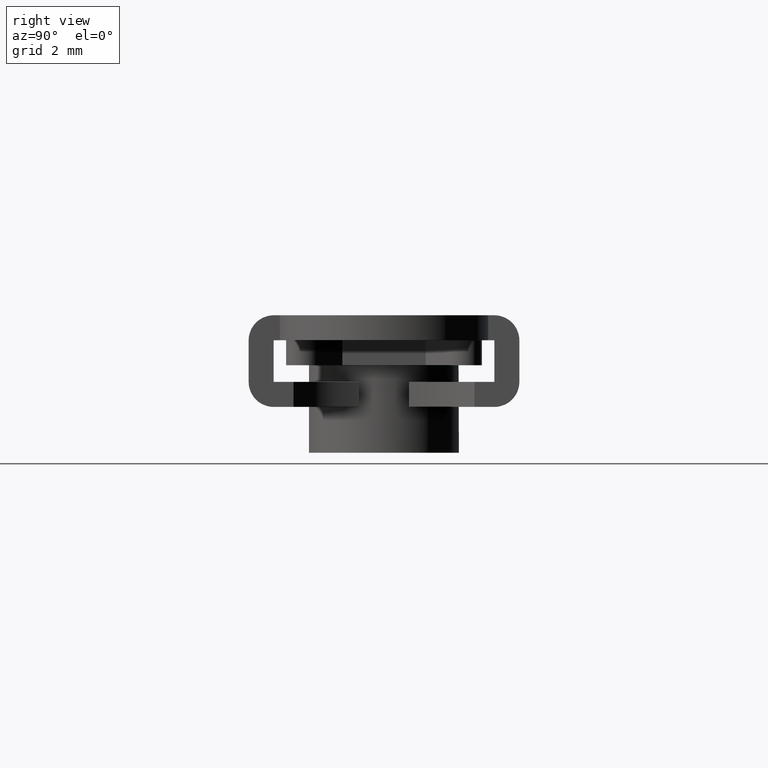
[diagram: clean part render]
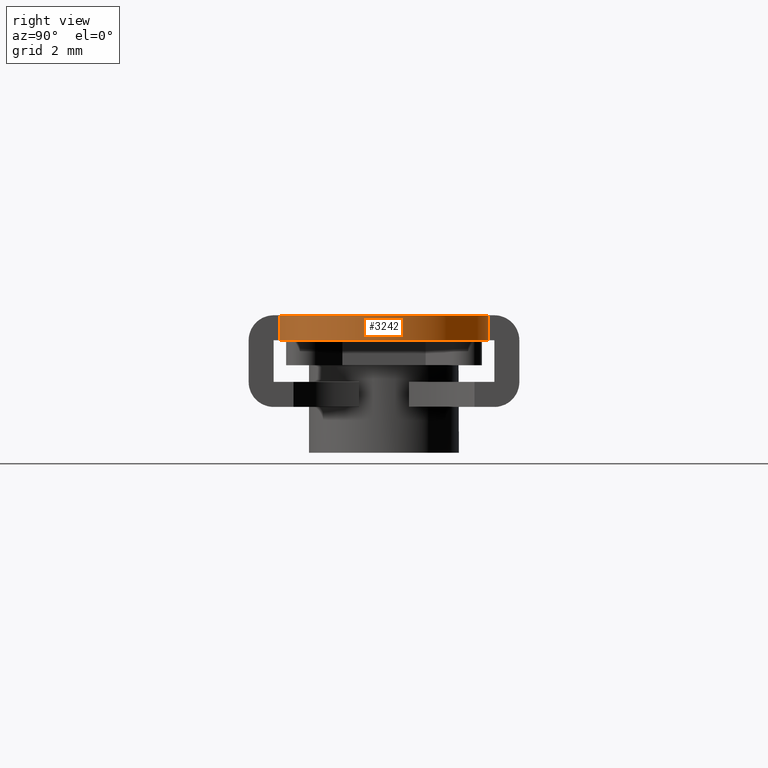
[diagram: same view with one face highlighted and labeled with its STEP entity id]
A machine part, right view. The second image highlights one B-rep face of the part: STEP entity #3242.
In plain terms, the highlighted face is a freeform B-spline surface patch.
Its self-contained STEP definition (entity closure, byte-faithful):
#3151=CARTESIAN_POINT('',(5.500000000000000,-2.500000000000000,0.0));
#3152=VERTEX_POINT('',#3151);
#3167=CARTESIAN_POINT('',(5.500000000000000,-2.500000000000000,-0.600000000000045));
#3168=VERTEX_POINT('',#3167);
#3174=CARTESIAN_POINT('',(5.500000000000000,-2.500000000000000,-0.600000000000045));
#3175=CARTESIAN_POINT('',(5.500000000000000,-2.500000000000000,0.0));
#3176=QUASI_UNIFORM_CURVE('',1,(#3174,#3175),.UNSPECIFIED.,.F.,.U.);
#3177=EDGE_CURVE('',#3168,#3152,#3176,.T.);
#3182=CARTESIAN_POINT('',(5.434557629230314,2.499143312438892,-0.615000000000046));
#3183=CARTESIAN_POINT('',(5.434557629230314,2.499143312438892,0.015375000000001));
#3184=CARTESIAN_POINT('',(8.068105182107249,2.568105182107256,-0.615000000000046));
#3185=CARTESIAN_POINT('',(8.068105182107249,2.568105182107256,0.015375000000001));
#3186=CARTESIAN_POINT('',(7.999143312438892,-0.065442370769680,-0.615000000000046));
#3187=CARTESIAN_POINT('',(7.999143312438892,-0.065442370769680,0.015375000000001));
#3188=CARTESIAN_POINT('',(7.930181442770536,-2.698989923646615,-0.615000000000046));
#3189=CARTESIAN_POINT('',(7.930181442770536,-2.698989923646615,0.015375000000001));
#3190=CARTESIAN_POINT('',(5.303852260680391,-2.492293334332818,-0.615000000000046));
#3191=CARTESIAN_POINT('',(5.303852260680391,-2.492293334332818,0.015375000000001));
#3199=(BOUNDED_SURFACE()B_SPLINE_SURFACE(1,2,((#3182,#3184,#3186,#3188,#3190),(#3183,#3185,#3187,#3189,#3191)),.UNSPECIFIED.,.F.,.F.,.U.)B_SPLINE_SURFACE_WITH_KNOTS((2,2),(3,2,3),(0.0,1.0),(0.0,4.296339059668360,8.592678119336719),.UNSPECIFIED.)GEOMETRIC_REPRESENTATION_ITEM()RATIONAL_B_SPLINE_SURFACE(((1.0,0.688354575693754,1.0,0.688354575693754,1.0),(1.0,0.688354575693754,1.0,0.688354575693754,1.0)))REPRESENTATION_ITEM('')SURFACE());
#3200=CARTESIAN_POINT('',(5.500000000000000,2.500000000000000,0.0));
#3201=VERTEX_POINT('',#3200);
#3202=CARTESIAN_POINT('',(5.500000000000000,-2.500000000000000,0.0));
#3203=CARTESIAN_POINT('',(8.0,-2.500000000000000,0.0));
#3204=CARTESIAN_POINT('',(8.0,0.0,0.0));
#3205=CARTESIAN_POINT('',(8.0,2.500000000000000,0.0));
#3206=CARTESIAN_POINT('',(5.500000000000000,2.500000000000000,0.0));
#3214=(BOUNDED_CURVE()B_SPLINE_CURVE(2,(#3202,#3203,#3204,#3205,#3206),.UNSPECIFIED.,.F.,.U.)B_SPLINE_CURVE_WITH_KNOTS((3,2,3),(0.0,0.500000000000000,1.0),.UNSPECIFIED.)CURVE()GEOMETRIC_REPRESENTATION_ITEM()RATIONAL_B_SPLINE_CURVE((1.0,0.707106781186548,1.0,0.707106781186548,1.0))REPRESENTATION_ITEM(''));
#3215=EDGE_CURVE('',#3152,#3201,#3214,.T.);
#3216=ORIENTED_EDGE('',*,*,#3215,.F.);
#3217=ORIENTED_EDGE('',*,*,#3177,.F.);
#3218=CARTESIAN_POINT('',(5.500000000000000,2.500000000000000,-0.600000000000045));
#3219=VERTEX_POINT('',#3218);
#3220=CARTESIAN_POINT('',(5.500000000000000,-2.500000000000000,-0.600000000000045));
#3221=CARTESIAN_POINT('',(8.0,-2.500000000000000,-0.600000000000045));
#3222=CARTESIAN_POINT('',(8.0,0.0,-0.600000000000045));
#3223=CARTESIAN_POINT('',(8.0,2.500000000000000,-0.600000000000045));
#3224=CARTESIAN_POINT('',(5.500000000000000,2.500000000000000,-0.600000000000045));
#3232=(BOUNDED_CURVE()B_SPLINE_CURVE(2,(#3220,#3221,#3222,#3223,#3224),.UNSPECIFIED.,.F.,.U.)B_SPLINE_CURVE_WITH_KNOTS((3,2,3),(0.0,0.500000000000000,1.0),.UNSPECIFIED.)CURVE()GEOMETRIC_REPRESENTATION_ITEM()RATIONAL_B_SPLINE_CURVE((1.0,0.707106781186548,1.0,0.707106781186548,1.0))REPRESENTATION_ITEM(''));
#3233=EDGE_CURVE('',#3168,#3219,#3232,.T.);
#3234=ORIENTED_EDGE('',*,*,#3233,.T.);
#3235=CARTESIAN_POINT('',(5.500000000000000,2.500000000000000,-0.600000000000045));
#3236=CARTESIAN_POINT('',(5.500000000000000,2.500000000000000,0.0));
#3237=QUASI_UNIFORM_CURVE('',1,(#3235,#3236),.UNSPECIFIED.,.F.,.U.);
#3238=EDGE_CURVE('',#3219,#3201,#3237,.T.);
#3239=ORIENTED_EDGE('',*,*,#3238,.T.);
#3240=EDGE_LOOP('',(#3216,#3217,#3234,#3239));
#3241=FACE_OUTER_BOUND('',#3240,.T.);
#3242=ADVANCED_FACE('',(#3241),#3199,.T.);